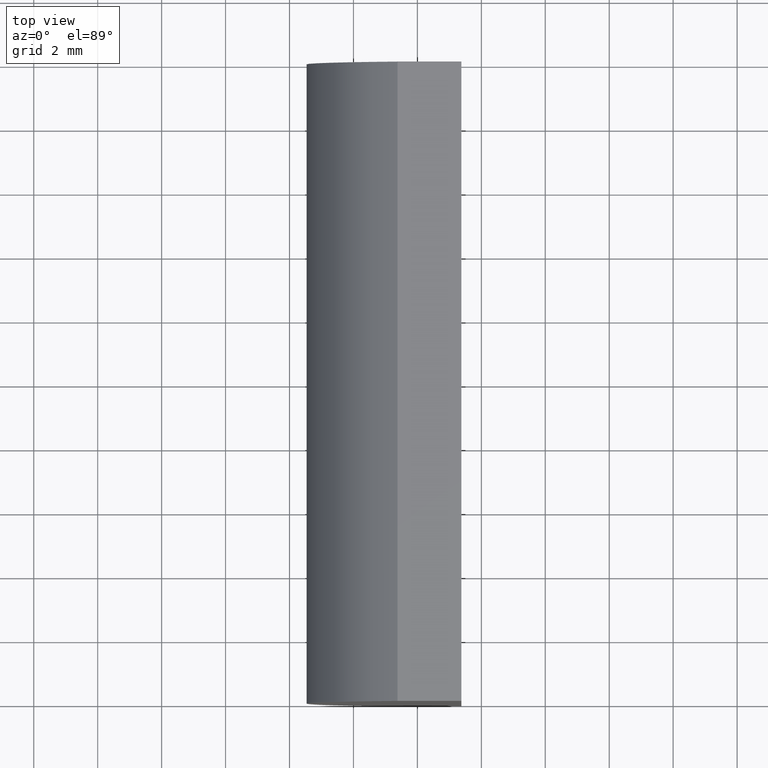
[diagram: clean part render]
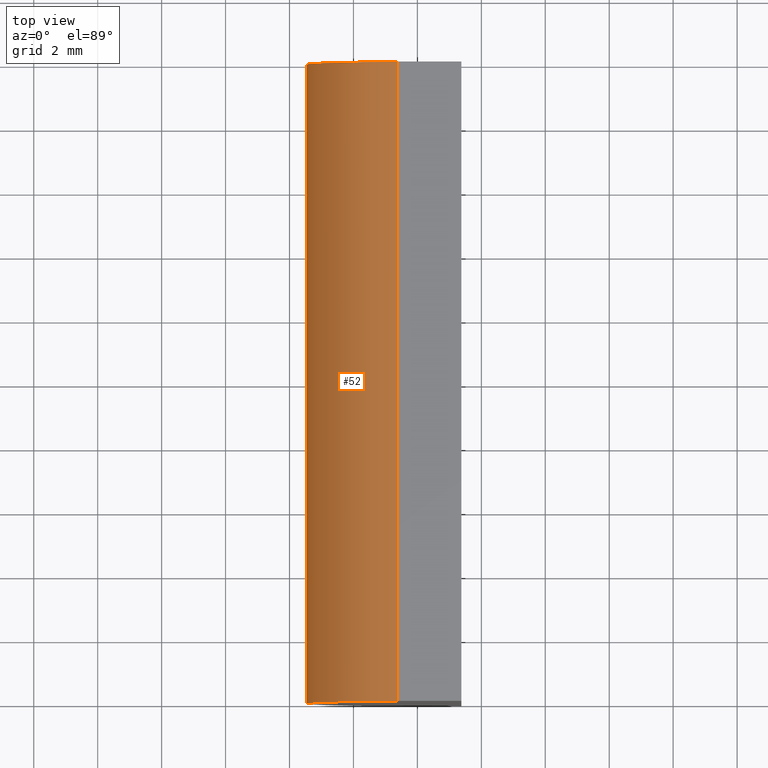
[diagram: same view with one face highlighted and labeled with its STEP entity id]
A machine part, top view. The second image highlights one B-rep face of the part: STEP entity #52.
In plain terms, the highlighted cylindrical surface (partial cylindrical patch) has radius 5.82 mm, axis along (-0, -1, -0).
Its self-contained STEP definition (entity closure, byte-faithful):
#3 = EDGE_CURVE ( 'NONE', #152, #32, #126, .T. ) ;
#10 = CARTESIAN_POINT ( 'NONE',  ( 1.376546919168830700, 20.00000000000000000, 5.000000000000000000 ) ) ;
#12 = CARTESIAN_POINT ( 'NONE',  ( 4.355204334851265500, 20.00000000000000000, 4.286263797015675000E-017 ) ) ;
#14 = CARTESIAN_POINT ( 'NONE',  ( 4.355204334851265500, 20.00000000000000000, 4.286263797015675000E-017 ) ) ;
#25 = CARTESIAN_POINT ( 'NONE',  ( 1.376546919168830700, 20.00000000000000000, -5.000000000000000000 ) ) ;
#28 = DIRECTION ( 'NONE',  ( 0.0000000000000000000, 1.000000000000000000, 0.0000000000000000000 ) ) ;
#29 = CARTESIAN_POINT ( 'NONE',  ( 1.376546919168830700, 20.00000000000000000, 5.000000000000000000 ) ) ;
#30 = VERTEX_POINT ( 'NONE', #201 ) ;
#32 = VERTEX_POINT ( 'NONE', #29 ) ;
#36 = EDGE_CURVE ( 'NONE', #30, #129, #47, .T. ) ;
#47 = CIRCLE ( 'NONE', #108, 5.819999999999996700 ) ;
#49 = EDGE_CURVE ( 'NONE', #152, #30, #68, .T. ) ;
#50 = LINE ( 'NONE', #10, #53 ) ;
#52 = ADVANCED_FACE ( 'NONE', ( #111 ), #158, .T. ) ;
#53 = VECTOR ( 'NONE', #121, 1000.000000000000000 ) ;
#60 = EDGE_LOOP ( 'NONE', ( #157, #89, #105, #77 ) ) ;
#68 = LINE ( 'NONE', #169, #194 ) ;
#77 = ORIENTED_EDGE ( 'NONE', *, *, #49, .T. ) ;
#78 = EDGE_CURVE ( 'NONE', #32, #129, #50, .T. ) ;
#82 = CARTESIAN_POINT ( 'NONE',  ( 1.376546919168830700, 0.0000000000000000000, 5.000000000000000000 ) ) ;
#84 = DIRECTION ( 'NONE',  ( -0.0000000000000000000, -1.000000000000000000, -0.0000000000000000000 ) ) ;
#87 = DIRECTION ( 'NONE',  ( 0.0000000000000000000, 1.000000000000000000, 0.0000000000000000000 ) ) ;
#89 = ORIENTED_EDGE ( 'NONE', *, *, #78, .F. ) ;
#93 = AXIS2_PLACEMENT_3D ( 'NONE', #14, #87, #155 ) ;
#103 = DIRECTION ( 'NONE',  ( -0.0000000000000000000, -1.000000000000000000, -0.0000000000000000000 ) ) ;
#105 = ORIENTED_EDGE ( 'NONE', *, *, #3, .F. ) ;
#108 = AXIS2_PLACEMENT_3D ( 'NONE', #141, #28, #123 ) ;
#111 = FACE_OUTER_BOUND ( 'NONE', #60, .T. ) ;
#121 = DIRECTION ( 'NONE',  ( -0.0000000000000000000, -1.000000000000000000, -0.0000000000000000000 ) ) ;
#123 = DIRECTION ( 'NONE',  ( 0.0000000000000000000, 0.0000000000000000000, 1.000000000000000000 ) ) ;
#126 = CIRCLE ( 'NONE', #93, 5.819999999999996700 ) ;
#129 = VERTEX_POINT ( 'NONE', #82 ) ;
#141 = CARTESIAN_POINT ( 'NONE',  ( 4.355204334851265500, 0.0000000000000000000, 4.286263797015675000E-017 ) ) ;
#146 = AXIS2_PLACEMENT_3D ( 'NONE', #12, #84, #183 ) ;
#152 = VERTEX_POINT ( 'NONE', #25 ) ;
#155 = DIRECTION ( 'NONE',  ( 0.0000000000000000000, 0.0000000000000000000, 1.000000000000000000 ) ) ;
#157 = ORIENTED_EDGE ( 'NONE', *, *, #36, .T. ) ;
#158 = CYLINDRICAL_SURFACE ( 'NONE', #146, 5.819999999999996700 ) ;
#169 = CARTESIAN_POINT ( 'NONE',  ( 1.376546919168830700, 20.00000000000000000, -5.000000000000000000 ) ) ;
#183 = DIRECTION ( 'NONE',  ( 0.0000000000000000000, 0.0000000000000000000, -1.000000000000000000 ) ) ;
#194 = VECTOR ( 'NONE', #103, 1000.000000000000000 ) ;
#201 = CARTESIAN_POINT ( 'NONE',  ( 1.376546919168830700, 0.0000000000000000000, -5.000000000000000000 ) ) ;